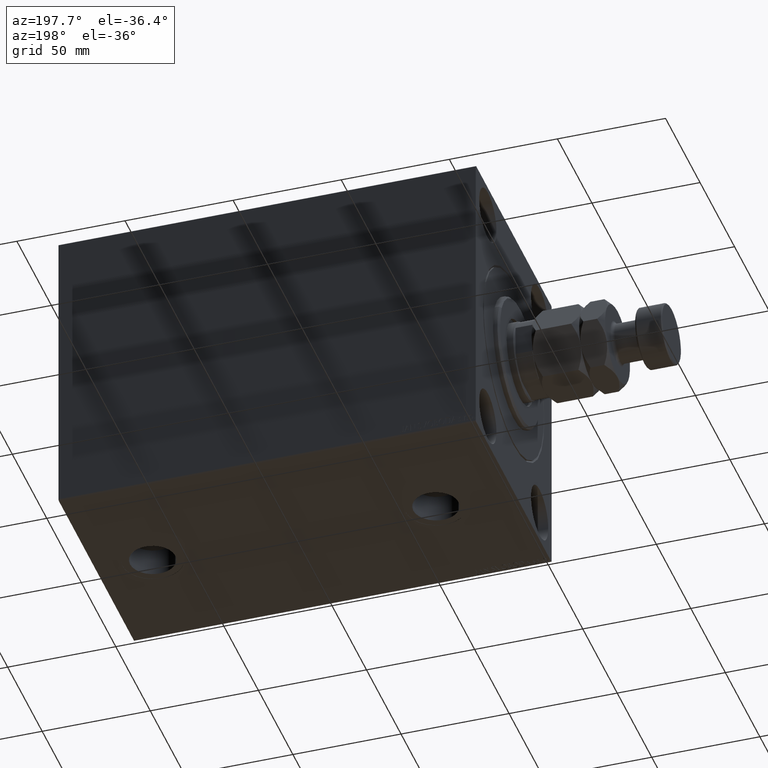
[diagram: clean part render]
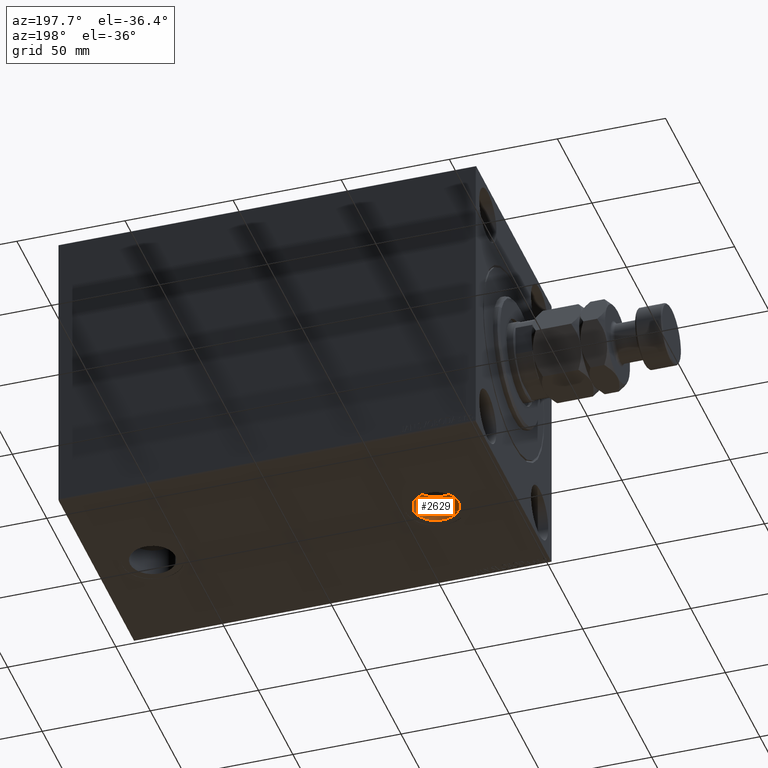
[diagram: same view with one face highlighted and labeled with its STEP entity id]
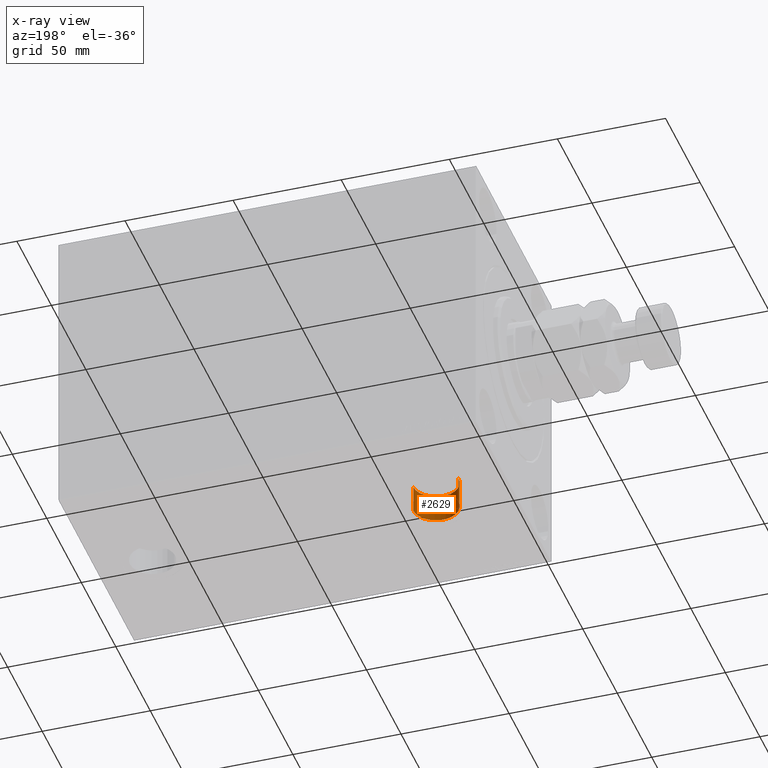
[diagram: x-ray of the same camera — body ghosted, the highlighted face saturated]
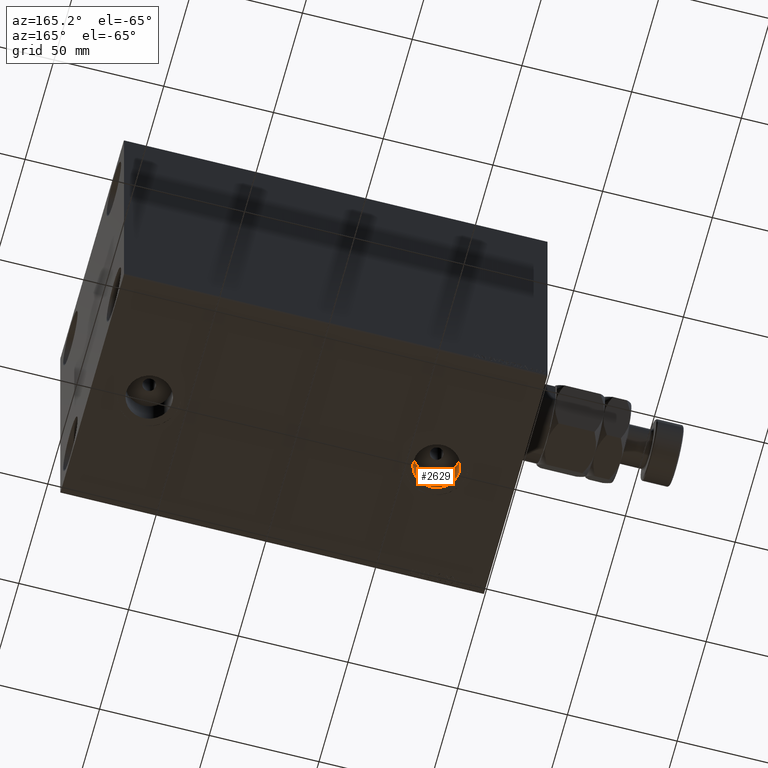
[diagram: same view with one face highlighted and labeled with its STEP entity id]
A machine part, auxiliary view. The second image highlights one B-rep face of the part: STEP entity #2629.
The next image is the same camera in x-ray: the body ghosted, the highlighted face saturated — about 0% of this face is hidden behind the body in this view.
A second angle (auxiliary view) of the same face is appended — the face is thin or edge-on in the first view.
In plain terms, the highlighted cylindrical surface (edge-blend (fillet) strip) has radius 10.48 mm, axis along (-0, -0, -1).
Its self-contained STEP definition (entity closure, byte-faithful):
#2629 = ADVANCED_FACE ( 'NONE', ( #9804 ), #23831, .F. ) ;
#3946 = VERTEX_POINT ( 'NONE', #34081 ) ;
#7610 = ORIENTED_EDGE ( 'NONE', *, *, #46859, .F. ) ;
#7970 = ORIENTED_EDGE ( 'NONE', *, *, #25846, .F. ) ;
#8056 = AXIS2_PLACEMENT_3D ( 'NONE', #21690, #20980, #28121 ) ;
#9804 = FACE_OUTER_BOUND ( 'NONE', #18935, .T. ) ;
#12506 = CARTESIAN_POINT ( 'NONE',  ( 46.47999999999999687, 9.280188758317773110E-15, -57.00000000000001421 ) ) ;
#13568 = DIRECTION ( 'NONE',  ( -1.000000000000000000, 0.000000000000000000, 0.000000000000000000 ) ) ;
#14088 = VERTEX_POINT ( 'NONE', #20282 ) ;
#14491 = VECTOR ( 'NONE', #30795, 1000.000000000000000 ) ;
#14498 = VERTEX_POINT ( 'NONE', #28080 ) ;
#15914 = AXIS2_PLACEMENT_3D ( 'NONE', #28346, #20251, #27643 ) ;
#16232 = AXIS2_PLACEMENT_3D ( 'NONE', #27831, #35217, #13568 ) ;
#18935 = EDGE_LOOP ( 'NONE', ( #7610, #39368, #33930, #7970 ) ) ;
#19386 = LINE ( 'NONE', #12506, #14491 ) ;
#19570 = EDGE_CURVE ( 'NONE', #43718, #3946, #22484, .T. ) ;
#20251 = DIRECTION ( 'NONE',  ( -0.000000000000000000, -0.000000000000000000, -1.000000000000000000 ) ) ;
#20282 = CARTESIAN_POINT ( 'NONE',  ( 46.47999999999999687, 9.280188758317773110E-15, -57.00000000000001421 ) ) ;
#20980 = DIRECTION ( 'NONE',  ( 0.000000000000000000, 0.000000000000000000, -1.000000000000000000 ) ) ;
#21690 = CARTESIAN_POINT ( 'NONE',  ( 36.00000000000000000, 7.996758912811346044E-15, -69.90000000000001990 ) ) ;
#22484 = CIRCLE ( 'NONE', #8056, 10.48000000000000043 ) ;
#23831 = CYLINDRICAL_SURFACE ( 'NONE', #15914, 10.48000000000000043 ) ;
#25846 = EDGE_CURVE ( 'NONE', #14498, #3946, #27099, .T. ) ;
#27099 = LINE ( 'NONE', #41860, #46127 ) ;
#27643 = DIRECTION ( 'NONE',  ( -1.000000000000000000, 0.000000000000000000, 0.000000000000000000 ) ) ;
#27831 = CARTESIAN_POINT ( 'NONE',  ( 36.00000000000000000, 7.996758912811346044E-15, -57.00000000000001421 ) ) ;
#28080 = CARTESIAN_POINT ( 'NONE',  ( 25.51999999999999602, 7.996758912811346044E-15, -57.00000000000001421 ) ) ;
#28121 = DIRECTION ( 'NONE',  ( -1.000000000000000000, 0.000000000000000000, 0.000000000000000000 ) ) ;
#28346 = CARTESIAN_POINT ( 'NONE',  ( 36.00000000000000000, 7.996758912811346044E-15, -57.00000000000001421 ) ) ;
#30044 = CARTESIAN_POINT ( 'NONE',  ( 46.47999999999999687, 9.280188758317773110E-15, -69.90000000000001990 ) ) ;
#30795 = DIRECTION ( 'NONE',  ( -0.000000000000000000, -0.000000000000000000, -1.000000000000000000 ) ) ;
#33930 = ORIENTED_EDGE ( 'NONE', *, *, #19570, .T. ) ;
#34081 = CARTESIAN_POINT ( 'NONE',  ( 25.51999999999999602, 7.996758912811346044E-15, -69.90000000000001990 ) ) ;
#34232 = DIRECTION ( 'NONE',  ( -0.000000000000000000, -0.000000000000000000, -1.000000000000000000 ) ) ;
#35217 = DIRECTION ( 'NONE',  ( 0.000000000000000000, 0.000000000000000000, -1.000000000000000000 ) ) ;
#35824 = EDGE_CURVE ( 'NONE', #14088, #43718, #19386, .T. ) ;
#36746 = CIRCLE ( 'NONE', #16232, 10.48000000000000043 ) ;
#39368 = ORIENTED_EDGE ( 'NONE', *, *, #35824, .T. ) ;
#41860 = CARTESIAN_POINT ( 'NONE',  ( 25.51999999999999602, 7.996758912811346044E-15, -57.00000000000001421 ) ) ;
#43718 = VERTEX_POINT ( 'NONE', #30044 ) ;
#46127 = VECTOR ( 'NONE', #34232, 1000.000000000000000 ) ;
#46859 = EDGE_CURVE ( 'NONE', #14088, #14498, #36746, .T. ) ;